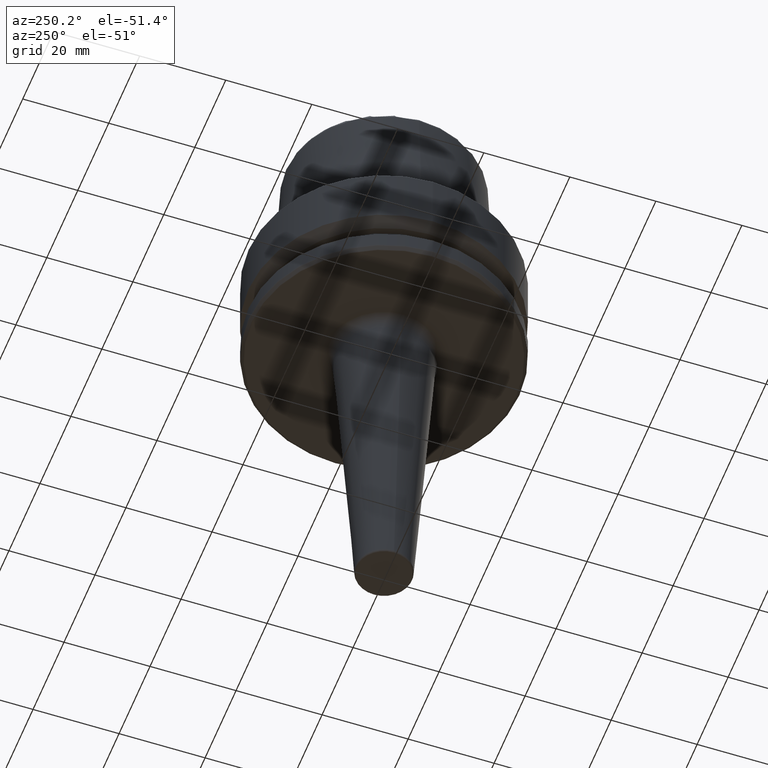
[diagram: clean part render]
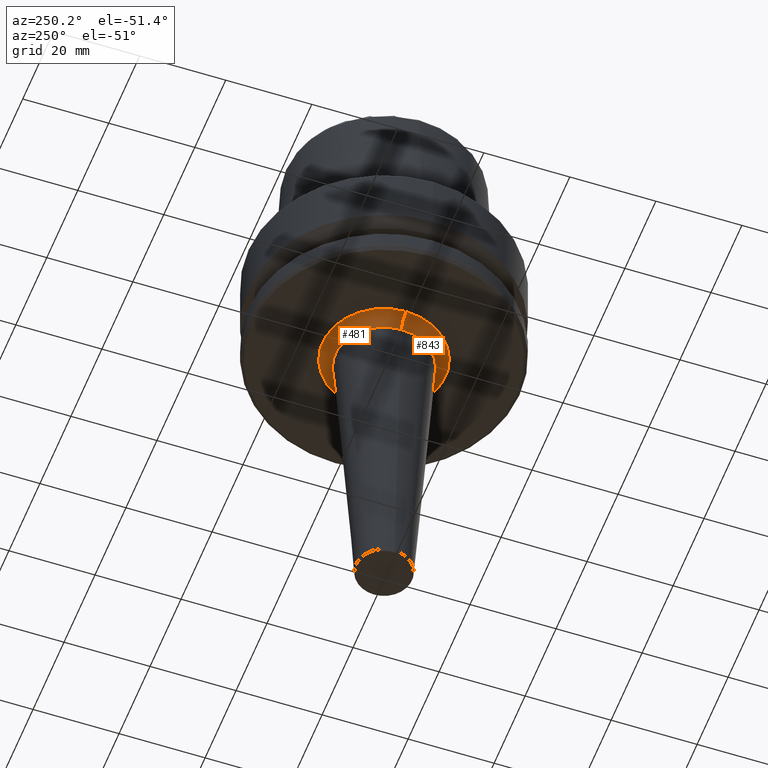
[diagram: same view with one multi-face feature highlighted, each face labeled with its STEP entity id]
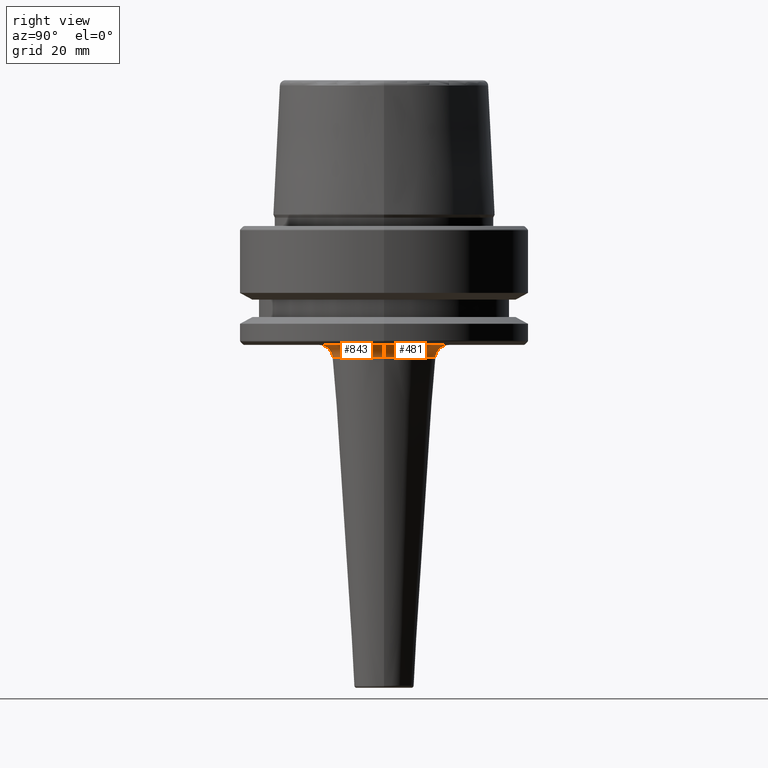
[diagram: same view with one multi-face feature highlighted, each face labeled with its STEP entity id]
A machine part, auxiliary view. The highlighted faces form ONE feature: a constant-radius fillet chain: 2 tangent blend faces with common blend radius 3 mm. The faces share edges in the B-rep.
A second angle (right view) of the same feature is appended — it is thin or edge-on in the first view.
Their STEP definitions:
[1] entity #843 (Torus):
#12 = VERTEX_POINT ( 'NONE', #912 ) ;
#86 = CARTESIAN_POINT ( 'NONE',  ( 11.31330380210474800, 0.0000000000000000000, -28.80044296842868700 ) ) ;
#95 = ORIENTED_EDGE ( 'NONE', *, *, #609, .F. ) ;
#108 = EDGE_CURVE ( 'NONE', #12, #662, #807, .T. ) ;
#123 = CIRCLE ( 'NONE', #161, 14.30665927567457500 ) ;
#150 = CARTESIAN_POINT ( 'NONE',  ( 0.0000000000000000000, 0.0000000000000000000, -28.80044296842868700 ) ) ;
#161 = AXIS2_PLACEMENT_3D ( 'NONE', #305, #310, #888 ) ;
#188 = CARTESIAN_POINT ( 'NONE',  ( 14.30665927567457500, 0.0000000000000000000, -26.00000000000001100 ) ) ;
#216 = DIRECTION ( 'NONE',  ( 0.0000000000000000000, 0.0000000000000000000, -1.000000000000000000 ) ) ;
#237 = CIRCLE ( 'NONE', #1158, 11.31330380210474700 ) ;
#259 = CARTESIAN_POINT ( 'NONE',  ( -11.31330380210474800, 1.385480128902916300E-015, -28.80044296842868700 ) ) ;
#275 = DIRECTION ( 'NONE',  ( 1.000000000000000000, 0.0000000000000000000, 0.0000000000000000000 ) ) ;
#305 = CARTESIAN_POINT ( 'NONE',  ( 0.0000000000000000000, 0.0000000000000000000, -26.00000000000001100 ) ) ;
#306 = EDGE_CURVE ( 'NONE', #1104, #412, #779, .T. ) ;
#310 = DIRECTION ( 'NONE',  ( -0.0000000000000000000, -0.0000000000000000000, 1.000000000000000000 ) ) ;
#390 = EDGE_LOOP ( 'NONE', ( #95, #1166, #986, #535 ) ) ;
#412 = VERTEX_POINT ( 'NONE', #86 ) ;
#444 = DIRECTION ( 'NONE',  ( -0.0000000000000000000, -0.0000000000000000000, -1.000000000000000000 ) ) ;
#518 = DIRECTION ( 'NONE',  ( 1.224646799147353200E-016, 1.000000000000000000, 0.0000000000000000000 ) ) ;
#519 = AXIS2_PLACEMENT_3D ( 'NONE', #855, #862, #275 ) ;
#535 = ORIENTED_EDGE ( 'NONE', *, *, #306, .F. ) ;
#562 = EDGE_CURVE ( 'NONE', #412, #662, #237, .T. ) ;
#609 = EDGE_CURVE ( 'NONE', #12, #1104, #123, .T. ) ;
#625 = DIRECTION ( 'NONE',  ( 0.0000000000000000000, -1.000000000000000000, 0.0000000000000000000 ) ) ;
#648 = DIRECTION ( 'NONE',  ( 1.000000000000000000, 0.0000000000000000000, 0.0000000000000000000 ) ) ;
#662 = VERTEX_POINT ( 'NONE', #259 ) ;
#730 = AXIS2_PLACEMENT_3D ( 'NONE', #806, #625, #216 ) ;
#779 = CIRCLE ( 'NONE', #730, 2.999999999999999100 ) ;
#806 = CARTESIAN_POINT ( 'NONE',  ( 14.30665927567457500, 0.0000000000000000000, -29.00000000000000700 ) ) ;
#807 = CIRCLE ( 'NONE', #847, 3.000000000000000900 ) ;
#843 = ADVANCED_FACE ( 'NONE', ( #941 ), #1119, .F. ) ;
#847 = AXIS2_PLACEMENT_3D ( 'NONE', #1111, #518, #1082 ) ;
#855 = CARTESIAN_POINT ( 'NONE',  ( 0.0000000000000000000, 0.0000000000000000000, -29.00000000000000700 ) ) ;
#862 = DIRECTION ( 'NONE',  ( -0.0000000000000000000, -0.0000000000000000000, 1.000000000000000000 ) ) ;
#888 = DIRECTION ( 'NONE',  ( 1.000000000000000000, 0.0000000000000000000, 0.0000000000000000000 ) ) ;
#912 = CARTESIAN_POINT ( 'NONE',  ( -14.30665927567457500, 1.752060448844665700E-015, -26.00000000000001100 ) ) ;
#941 = FACE_OUTER_BOUND ( 'NONE', #390, .T. ) ;
#986 = ORIENTED_EDGE ( 'NONE', *, *, #562, .F. ) ;
#1082 = DIRECTION ( 'NONE',  ( -1.000000000000000000, 1.224646799147352700E-016, 0.0000000000000000000 ) ) ;
#1104 = VERTEX_POINT ( 'NONE', #188 ) ;
#1111 = CARTESIAN_POINT ( 'NONE',  ( -14.30665927567457500, 1.752060448844665700E-015, -29.00000000000000700 ) ) ;
#1119 = TOROIDAL_SURFACE ( 'NONE', #519, 14.30665927567457500, 3.000000000000000000 ) ;
#1158 = AXIS2_PLACEMENT_3D ( 'NONE', #150, #444, #648 ) ;
#1166 = ORIENTED_EDGE ( 'NONE', *, *, #108, .T. ) ;
[2] entity #481 (Torus):
#10 = ORIENTED_EDGE ( 'NONE', *, *, #840, .F. ) ;
#12 = VERTEX_POINT ( 'NONE', #912 ) ;
#81 = CARTESIAN_POINT ( 'NONE',  ( 0.0000000000000000000, 0.0000000000000000000, -28.80044296842868700 ) ) ;
#82 = ORIENTED_EDGE ( 'NONE', *, *, #108, .F. ) ;
#86 = CARTESIAN_POINT ( 'NONE',  ( 11.31330380210474800, 0.0000000000000000000, -28.80044296842868700 ) ) ;
#108 = EDGE_CURVE ( 'NONE', #12, #662, #807, .T. ) ;
#188 = CARTESIAN_POINT ( 'NONE',  ( 14.30665927567457500, 0.0000000000000000000, -26.00000000000001100 ) ) ;
#216 = DIRECTION ( 'NONE',  ( 0.0000000000000000000, 0.0000000000000000000, -1.000000000000000000 ) ) ;
#259 = CARTESIAN_POINT ( 'NONE',  ( -11.31330380210474800, 1.385480128902916300E-015, -28.80044296842868700 ) ) ;
#306 = EDGE_CURVE ( 'NONE', #1104, #412, #779, .T. ) ;
#336 = AXIS2_PLACEMENT_3D ( 'NONE', #950, #557, #1251 ) ;
#367 = CARTESIAN_POINT ( 'NONE',  ( 0.0000000000000000000, 0.0000000000000000000, -29.00000000000000700 ) ) ;
#381 = ORIENTED_EDGE ( 'NONE', *, *, #413, .F. ) ;
#412 = VERTEX_POINT ( 'NONE', #86 ) ;
#413 = EDGE_CURVE ( 'NONE', #662, #412, #416, .T. ) ;
#416 = CIRCLE ( 'NONE', #1243, 11.31330380210474700 ) ;
#481 = ADVANCED_FACE ( 'NONE', ( #947 ), #534, .F. ) ;
#518 = DIRECTION ( 'NONE',  ( 1.224646799147353200E-016, 1.000000000000000000, 0.0000000000000000000 ) ) ;
#534 = TOROIDAL_SURFACE ( 'NONE', #576, 14.30665927567457500, 3.000000000000000000 ) ;
#557 = DIRECTION ( 'NONE',  ( -0.0000000000000000000, -0.0000000000000000000, 1.000000000000000000 ) ) ;
#576 = AXIS2_PLACEMENT_3D ( 'NONE', #367, #590, #878 ) ;
#590 = DIRECTION ( 'NONE',  ( -0.0000000000000000000, -0.0000000000000000000, 1.000000000000000000 ) ) ;
#625 = DIRECTION ( 'NONE',  ( 0.0000000000000000000, -1.000000000000000000, 0.0000000000000000000 ) ) ;
#662 = VERTEX_POINT ( 'NONE', #259 ) ;
#730 = AXIS2_PLACEMENT_3D ( 'NONE', #806, #625, #216 ) ;
#768 = DIRECTION ( 'NONE',  ( 1.000000000000000000, 0.0000000000000000000, 0.0000000000000000000 ) ) ;
#779 = CIRCLE ( 'NONE', #730, 2.999999999999999100 ) ;
#806 = CARTESIAN_POINT ( 'NONE',  ( 14.30665927567457500, 0.0000000000000000000, -29.00000000000000700 ) ) ;
#807 = CIRCLE ( 'NONE', #847, 3.000000000000000900 ) ;
#820 = CIRCLE ( 'NONE', #336, 14.30665927567457500 ) ;
#840 = EDGE_CURVE ( 'NONE', #1104, #12, #820, .T. ) ;
#847 = AXIS2_PLACEMENT_3D ( 'NONE', #1111, #518, #1082 ) ;
#857 = EDGE_LOOP ( 'NONE', ( #82, #10, #1208, #381 ) ) ;
#878 = DIRECTION ( 'NONE',  ( 1.000000000000000000, 0.0000000000000000000, 0.0000000000000000000 ) ) ;
#912 = CARTESIAN_POINT ( 'NONE',  ( -14.30665927567457500, 1.752060448844665700E-015, -26.00000000000001100 ) ) ;
#947 = FACE_OUTER_BOUND ( 'NONE', #857, .T. ) ;
#950 = CARTESIAN_POINT ( 'NONE',  ( 0.0000000000000000000, 0.0000000000000000000, -26.00000000000001100 ) ) ;
#1038 = DIRECTION ( 'NONE',  ( -0.0000000000000000000, -0.0000000000000000000, -1.000000000000000000 ) ) ;
#1082 = DIRECTION ( 'NONE',  ( -1.000000000000000000, 1.224646799147352700E-016, 0.0000000000000000000 ) ) ;
#1104 = VERTEX_POINT ( 'NONE', #188 ) ;
#1111 = CARTESIAN_POINT ( 'NONE',  ( -14.30665927567457500, 1.752060448844665700E-015, -29.00000000000000700 ) ) ;
#1208 = ORIENTED_EDGE ( 'NONE', *, *, #306, .T. ) ;
#1243 = AXIS2_PLACEMENT_3D ( 'NONE', #81, #1038, #768 ) ;
#1251 = DIRECTION ( 'NONE',  ( 1.000000000000000000, 0.0000000000000000000, 0.0000000000000000000 ) ) ;